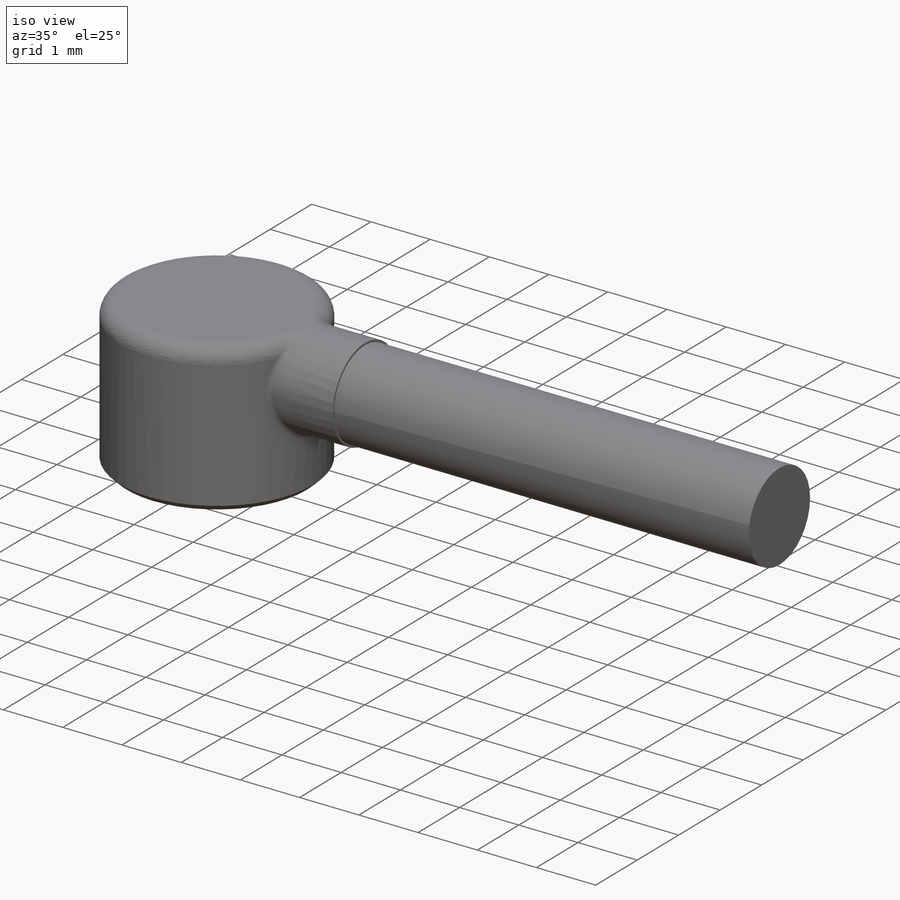
[diagram: iso view]
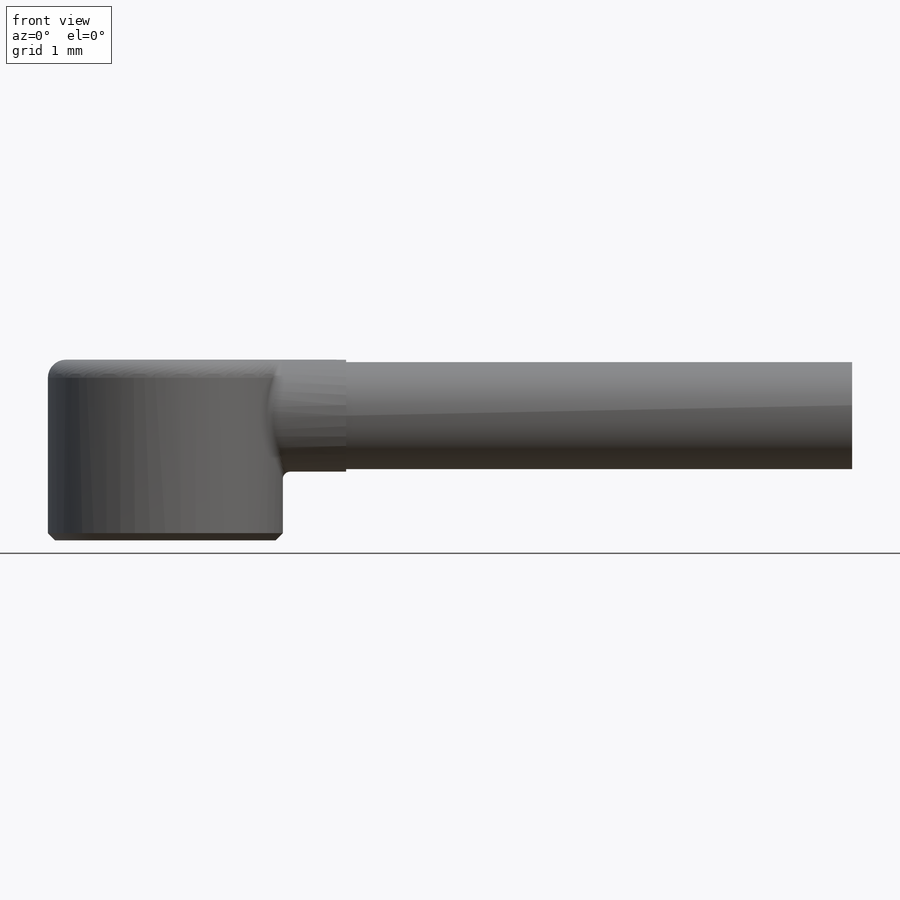
[diagram: front view]
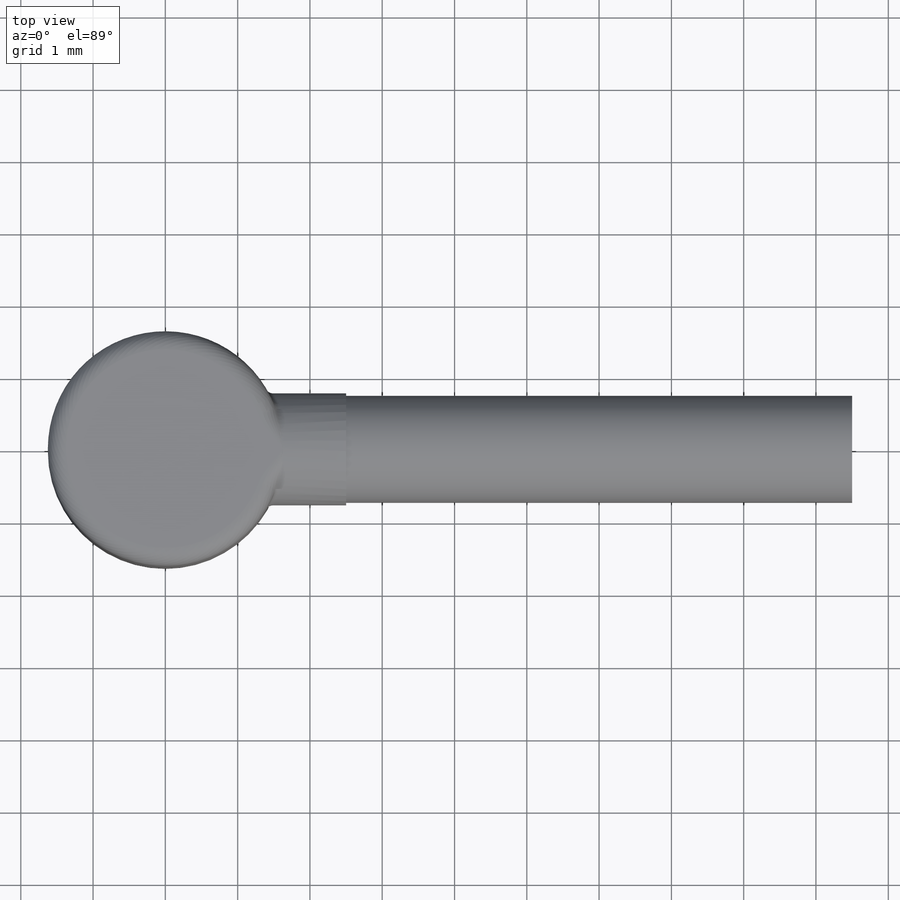
[diagram: top view]
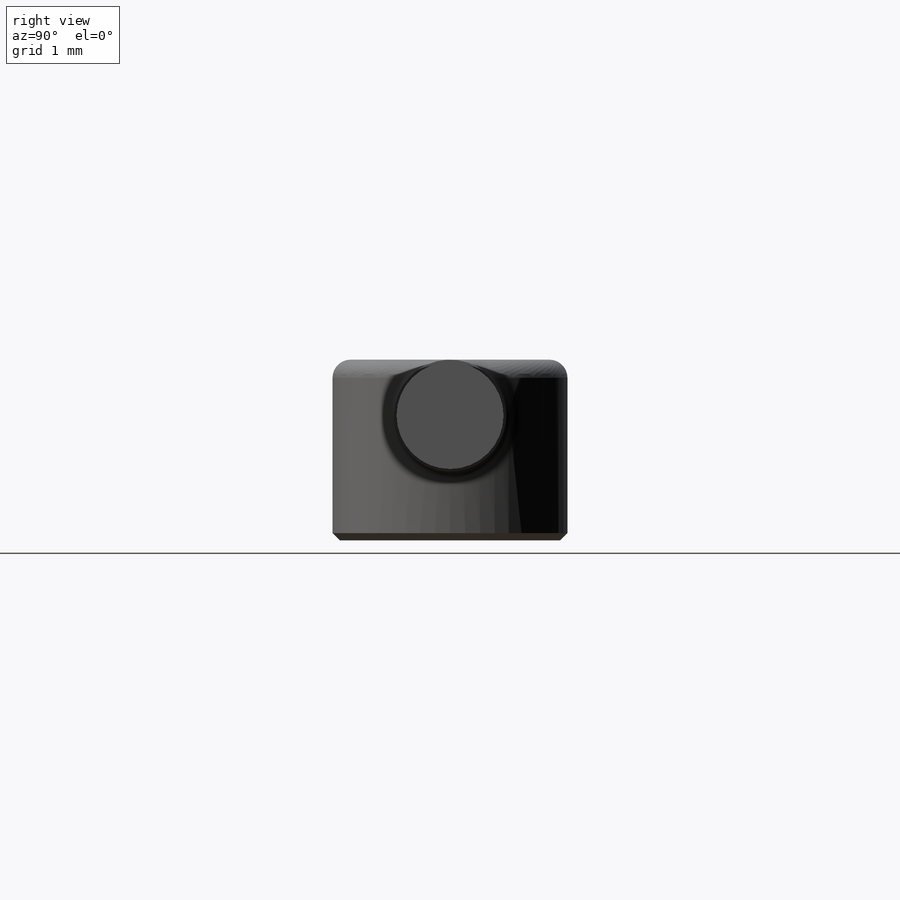
[diagram: right view]
SOLIDWORKS PART (.sldprt)
format: sldprt  version: not decoded by parser v0  size: 323,584 bytes
history: native  units: mm
features: sketch x5, plane x3, extrude x3, cut_extrude x2, fillet x2, material x1, chamfer x1 + 2 further entries (+13 scaffold rows collapsed)
feature tree (32):
  scaffold x13  (default folders/planes/origin — collapsed)
  material  "Material <not specified>"
  plane  "Plane1"
  plane  "Plane2"
  plane  "Plane3"
  "Axis2"
  "Axis3"
  sketch  "Sketch1"  dims[D1=3.25mm]
  extrude  "Extrude1"  Depth=2.5mm
  sketch  "Sketch2"  dims[D1=1.55mm]
  extrude  "Extrude2"  Depth=2.5mm
  sketch  "Sketch3"  dims[D1=1.48mm]
  extrude  "Extrude3"  Depth=7mm
  sketch  "Sketch4"  dims[D1=2.4mm D2=2.2mm]
  cut_extrude  "Extrude4"  Depth=2mm
  sketch  "Sketch5"  dims[D1=0.5mm]
  cut_extrude  "Extrude5"  Depth=2mm
  chamfer  "Chamfer1"  Distance=0.1mm Angle=45deg
  fillet  "Fillet1"  Radius=0.25mm
  fillet  "Fillet2"  Radius=0.1mm
decode coverage: 13 of 13 modeling features carry decoded parameters; 2 rows unclassified (native names shown)
note: suppression state not decoded; provenance and decode notes live in map.json
